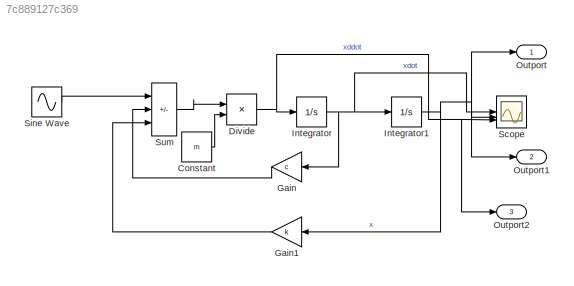
MODEL slx_7c889127c369
KIND model
CONFIG AbsTol = auto
CONFIG EnableMultiTasking = off
CONFIG FixedStep = auto
CONFIG MaxStep = 0.001
CONFIG MinStep = auto
CONFIG RelTol = 1e-3
CONFIG SampleTimeConstraint = Unconstrained
CONFIG SolverName = VariableStepAuto
CONFIG StartTime = 0.0
CONFIG StopTime = 10.0
BLOCK [Constant] Constant
  Value = m
BLOCK [Product] Divide
  Inputs = */
BLOCK [Gain] Gain
  Gain = c
BLOCK [Gain] Gain1
  Gain = k
BLOCK [Integrator] Integrator
BLOCK [Integrator] Integrator1
BLOCK [Outport] Outport
BLOCK [Outport] Outport1
  Port = 2
BLOCK [Outport] Outport2
  Port = 3
BLOCK [Scope] Scope
  Floating = off
  NumInputPorts = 3
  ScopeSpecificationString = Simulink.scopes.TimeScopeBlockCfg('CurrentConfiguration', extmgr.ConfigurationSet(extmgr.Configuration('Core','General UI',true),extmgr.Configuration('Core','Source UI',true),extmgr.Configuration('Sources','WiredSimulink',true),extmgr.Configuration('Visuals','Time Domain',true,'SerializedDisplays',{struct('MinYLimReal','-0.00006','MaxYLimReal','0.0001','YLabelReal','','MinYLimMag','0.00000','MaxYL...<+2985ch>
BLOCK [Sin] Sine Wave
  Amplitude = 15
  Frequency = 50
  SampleTime = 0
BLOCK [Sum] Sum
  IconShape = rectangular
  Inputs = |+--
LINE Constant:1 -> Divide:2
NET Divide:1 -> Integrator:1, Outport2:1, Scope:3
LINE Gain1:1 -> Sum:3
LINE Gain:1 -> Sum:2
NET Integrator1:1 -> Gain1:1, Outport:1, Scope:1
NET Integrator:1 -> Gain:1, Integrator1:1, Outport1:1, Scope:2
LINE Sine Wave:1 -> Sum:1
LINE Sum:1 -> Divide:1
note: NET lines group one-source signal fan-out (src -> all destinations, sorted); 1:1 wires keep LINE
